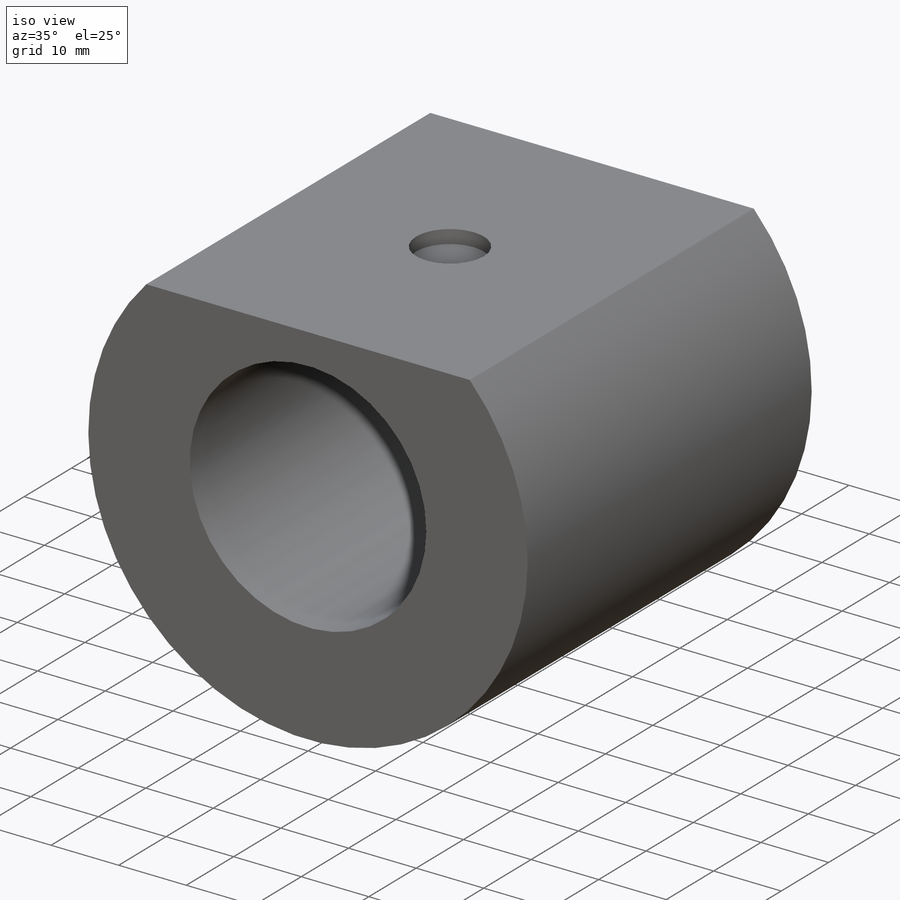
[diagram: iso view]
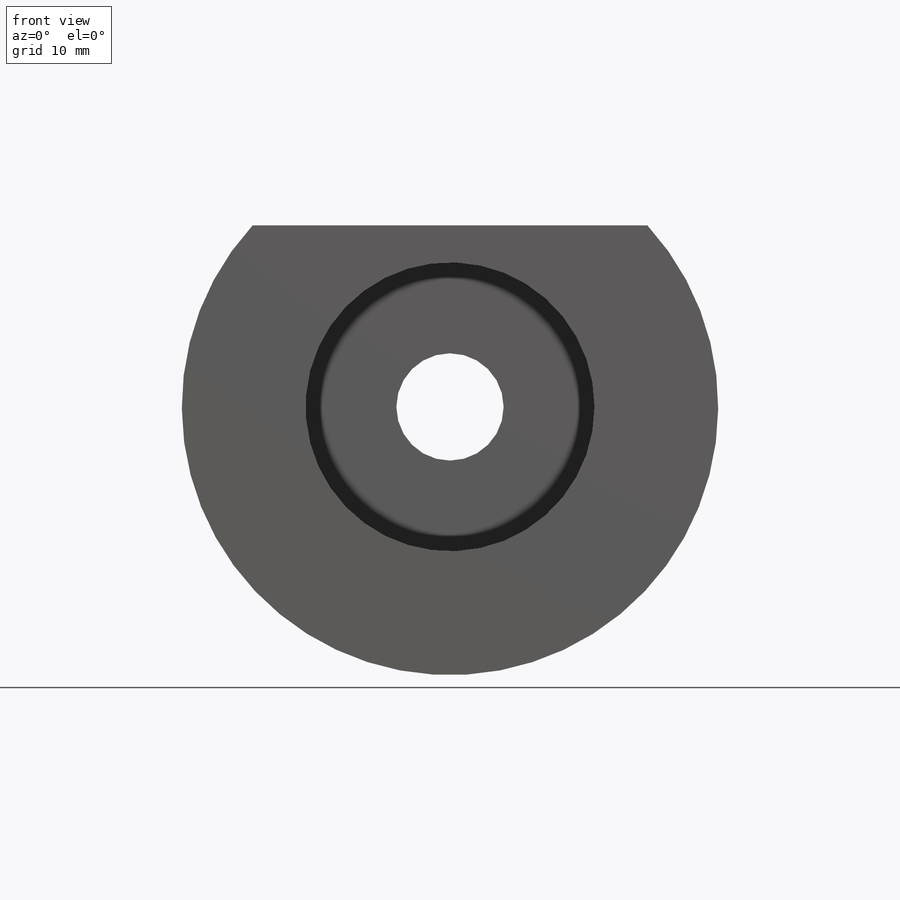
[diagram: front view]
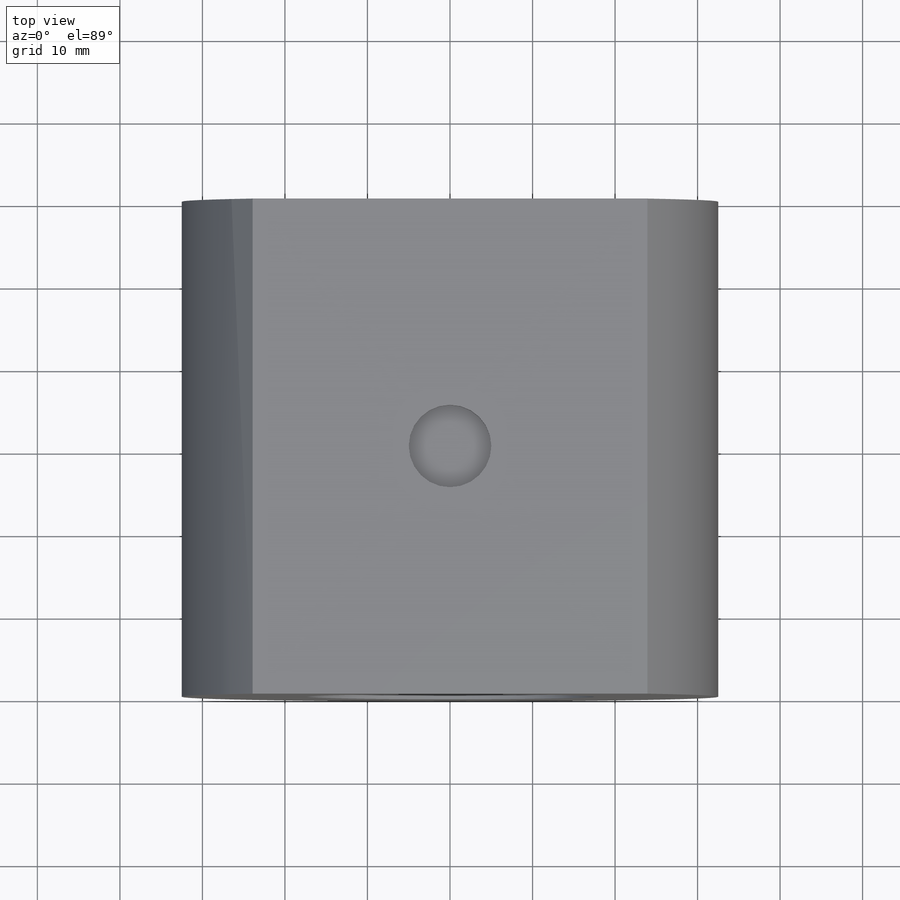
[diagram: top view]
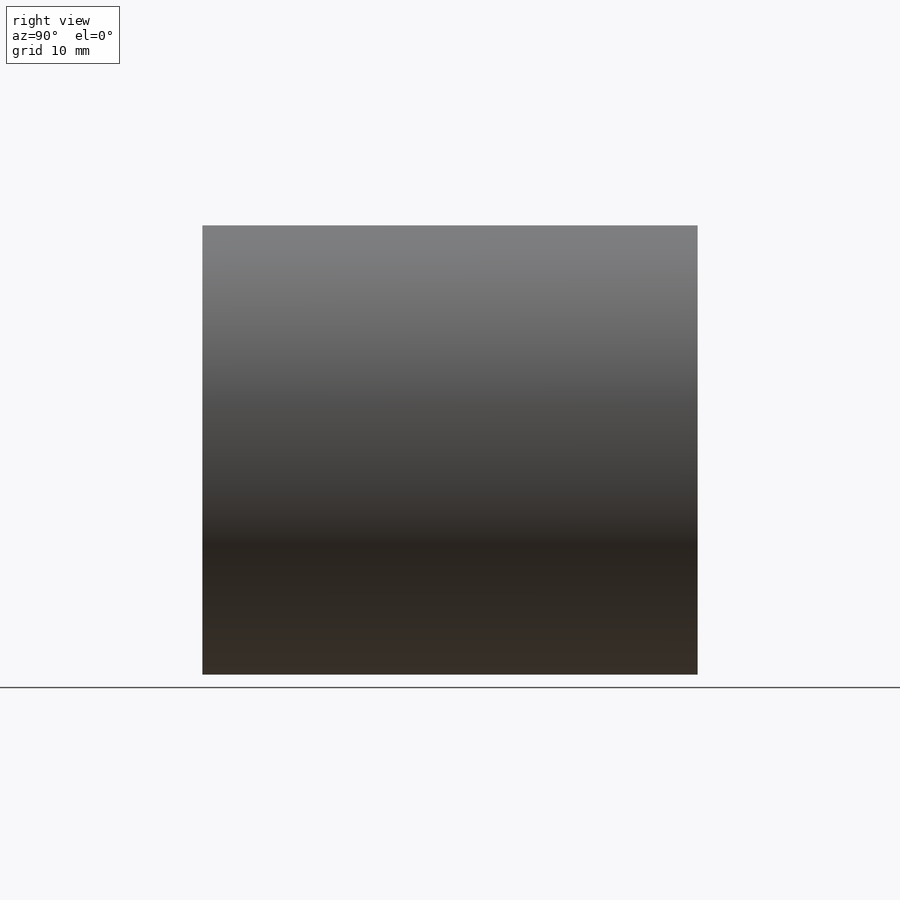
[diagram: right view]
SOLIDWORKS PART (.sldprt)
format: sldprt  version: not decoded by parser v0  size: 173,568 bytes
history: native  units: mm
features: sketch x5, cut_extrude x4, material x1, extrude x1 (+11 scaffold rows collapsed)
feature tree (22):
  scaffold x11  (default folders/planes/origin — collapsed)
  material  "Material <not specified>"
  sketch  "Sketch1"  dims[D1=65.0mm]
  extrude  "Boss-Extrude1"  Depth=60mm
  sketch  "Sketch3"  dims[D1=35.0mm]
  cut_extrude  "Cut-Extrude4"  Depth=52mm
  sketch  "Sketch6"  dims[D1=13.0mm]
  cut_extrude  "Cut-Extrude5"  Depth=8mm
  sketch  "Sketch8"  dims[D1=10.5mm]
  cut_extrude  "Cut-Extrude6"  Depth=60mm
  sketch  "Sketch9"  dims[D1=10.0mm]
  cut_extrude  "Cut-Extrude9"  Depth=2mm
decode coverage: 10 of 10 modeling features carry decoded parameters
note: suppression state not decoded; provenance and decode notes live in map.json
